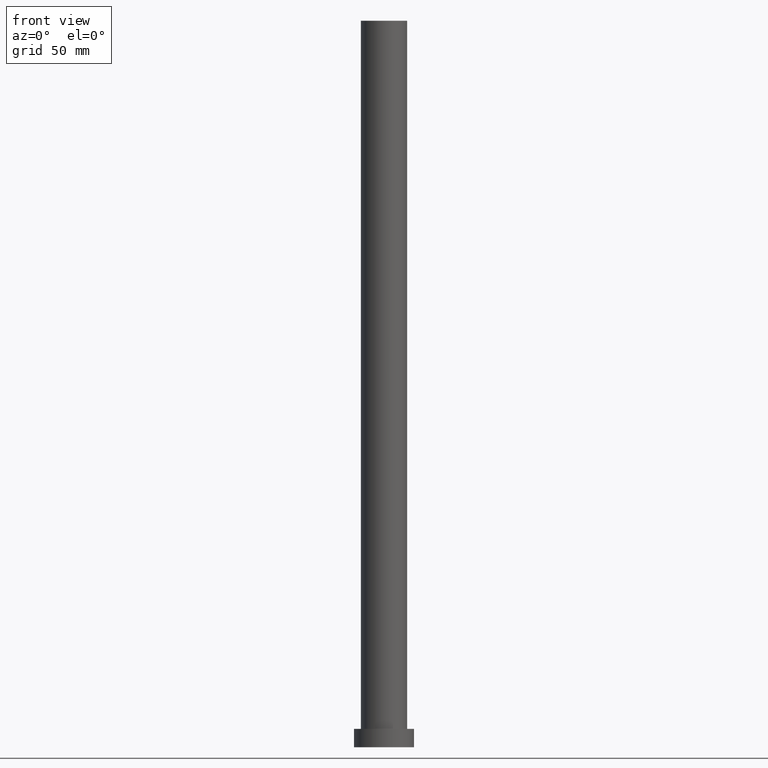
[diagram: clean part render]
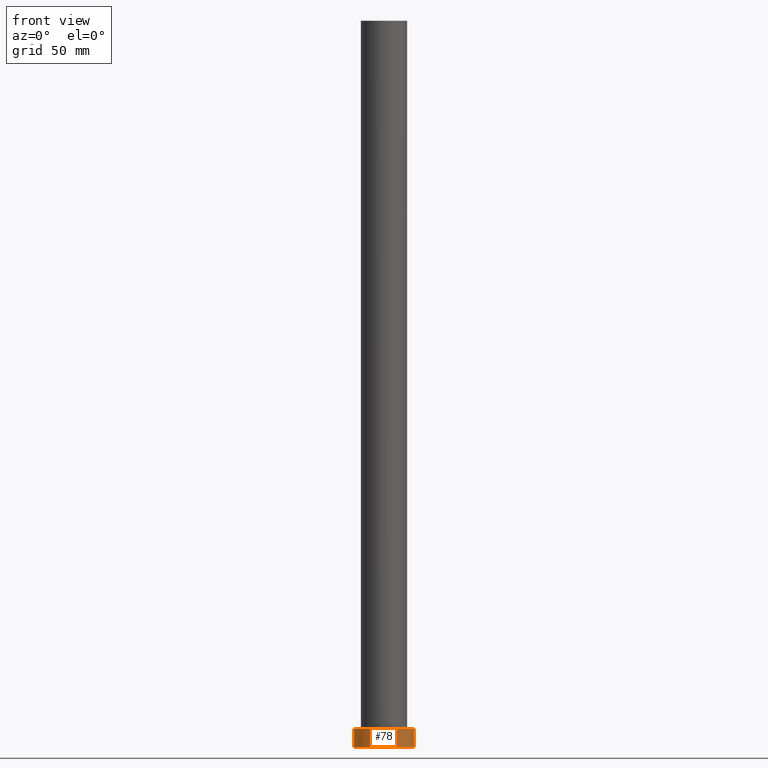
[diagram: same view with one face highlighted and labeled with its STEP entity id]
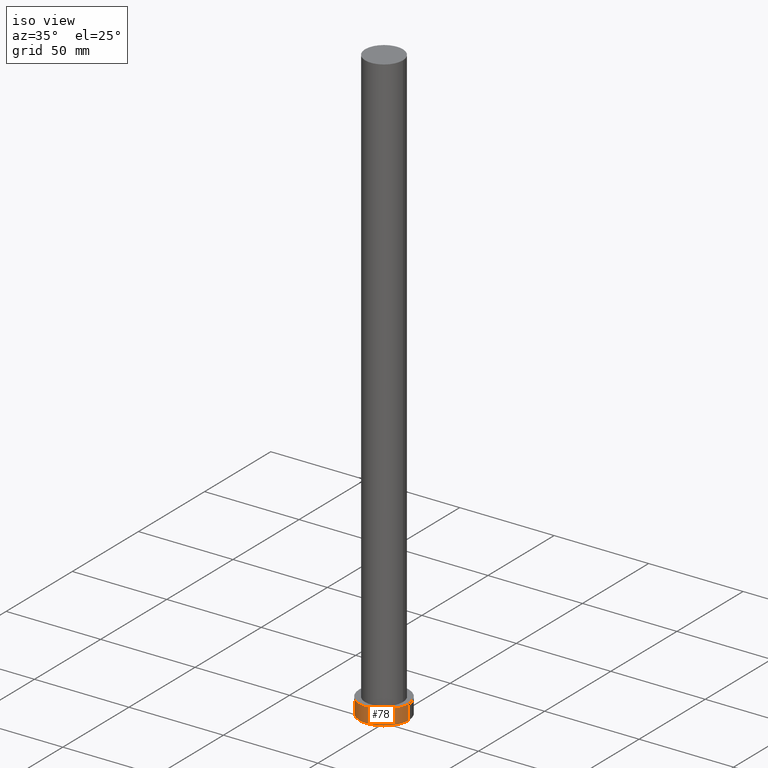
[diagram: same view with one face highlighted and labeled with its STEP entity id]
A machine part, front view. The second image highlights one B-rep face of the part: STEP entity #78.
A second angle (iso view) of the same face is appended — the face is thin or edge-on in the first view.
In plain terms, the highlighted cylindrical surface (edge-blend (fillet) strip) has radius 13 mm, axis along (-0, -0, -1).
Its self-contained STEP definition (entity closure, byte-faithful):
#4 = CARTESIAN_POINT ( 'NONE',  ( -13.00000000000000178, 0.000000000000000000, 8.000000000000000000 ) ) ;
#5 = AXIS2_PLACEMENT_3D ( 'NONE', #115, #198, #86 ) ;
#7 = CARTESIAN_POINT ( 'NONE',  ( -13.00000000000000178, 0.000000000000000000, 8.000000000000000000 ) ) ;
#16 = DIRECTION ( 'NONE',  ( 1.000000000000000000, 0.000000000000000000, 0.000000000000000000 ) ) ;
#22 = VERTEX_POINT ( 'NONE', #171 ) ;
#49 = VECTOR ( 'NONE', #58, 1000.000000000000000 ) ;
#58 = DIRECTION ( 'NONE',  ( -0.000000000000000000, -0.000000000000000000, -1.000000000000000000 ) ) ;
#66 = DIRECTION ( 'NONE',  ( 0.000000000000000000, 0.000000000000000000, 1.000000000000000000 ) ) ;
#77 = DIRECTION ( 'NONE',  ( -0.000000000000000000, -0.000000000000000000, -1.000000000000000000 ) ) ;
#78 = ADVANCED_FACE ( 'NONE', ( #136 ), #218, .T. ) ;
#79 = ORIENTED_EDGE ( 'NONE', *, *, #216, .F. ) ;
#86 = DIRECTION ( 'NONE',  ( 1.000000000000000000, 0.000000000000000000, 0.000000000000000000 ) ) ;
#87 = DIRECTION ( 'NONE',  ( -1.000000000000000000, 0.000000000000000000, 0.000000000000000000 ) ) ;
#90 = AXIS2_PLACEMENT_3D ( 'NONE', #151, #66, #16 ) ;
#97 = CIRCLE ( 'NONE', #90, 13.00000000000000178 ) ;
#100 = EDGE_LOOP ( 'NONE', ( #79, #147, #106, #123 ) ) ;
#104 = EDGE_CURVE ( 'NONE', #240, #164, #97, .T. ) ;
#106 = ORIENTED_EDGE ( 'NONE', *, *, #247, .T. ) ;
#107 = VECTOR ( 'NONE', #77, 1000.000000000000000 ) ;
#110 = LINE ( 'NONE', #163, #49 ) ;
#115 = CARTESIAN_POINT ( 'NONE',  ( 0.000000000000000000, 0.000000000000000000, 0.000000000000000000 ) ) ;
#117 = CIRCLE ( 'NONE', #5, 13.00000000000000178 ) ;
#123 = ORIENTED_EDGE ( 'NONE', *, *, #129, .T. ) ;
#129 = EDGE_CURVE ( 'NONE', #204, #22, #117, .T. ) ;
#136 = FACE_OUTER_BOUND ( 'NONE', #100, .T. ) ;
#137 = CARTESIAN_POINT ( 'NONE',  ( 13.00000000000000178, 1.592040838891559293E-15, 8.000000000000000000 ) ) ;
#147 = ORIENTED_EDGE ( 'NONE', *, *, #104, .F. ) ;
#151 = CARTESIAN_POINT ( 'NONE',  ( 0.000000000000000000, 0.000000000000000000, 8.000000000000000000 ) ) ;
#163 = CARTESIAN_POINT ( 'NONE',  ( 13.00000000000000178, 1.592040838891559293E-15, 8.000000000000000000 ) ) ;
#164 = VERTEX_POINT ( 'NONE', #137 ) ;
#169 = CARTESIAN_POINT ( 'NONE',  ( -13.00000000000000178, 0.000000000000000000, 0.000000000000000000 ) ) ;
#171 = CARTESIAN_POINT ( 'NONE',  ( 13.00000000000000178, 1.592040838891559293E-15, 0.000000000000000000 ) ) ;
#197 = DIRECTION ( 'NONE',  ( -0.000000000000000000, -0.000000000000000000, -1.000000000000000000 ) ) ;
#198 = DIRECTION ( 'NONE',  ( 0.000000000000000000, 0.000000000000000000, 1.000000000000000000 ) ) ;
#199 = CARTESIAN_POINT ( 'NONE',  ( 0.000000000000000000, 0.000000000000000000, 8.000000000000000000 ) ) ;
#204 = VERTEX_POINT ( 'NONE', #169 ) ;
#216 = EDGE_CURVE ( 'NONE', #164, #22, #110, .T. ) ;
#217 = AXIS2_PLACEMENT_3D ( 'NONE', #199, #197, #87 ) ;
#218 = CYLINDRICAL_SURFACE ( 'NONE', #217, 13.00000000000000178 ) ;
#240 = VERTEX_POINT ( 'NONE', #4 ) ;
#242 = LINE ( 'NONE', #7, #107 ) ;
#247 = EDGE_CURVE ( 'NONE', #240, #204, #242, .T. ) ;